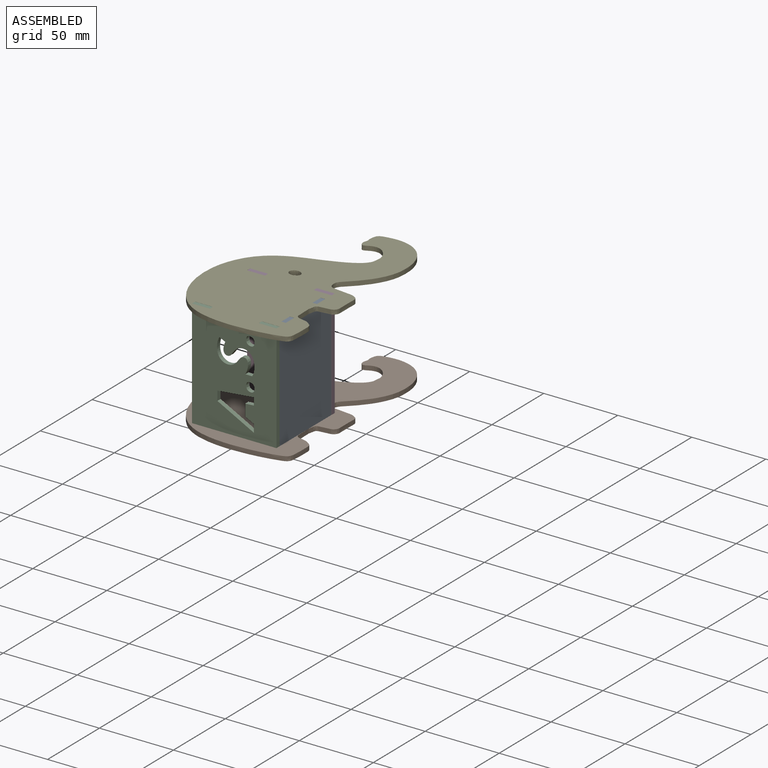
[diagram: assembled view]
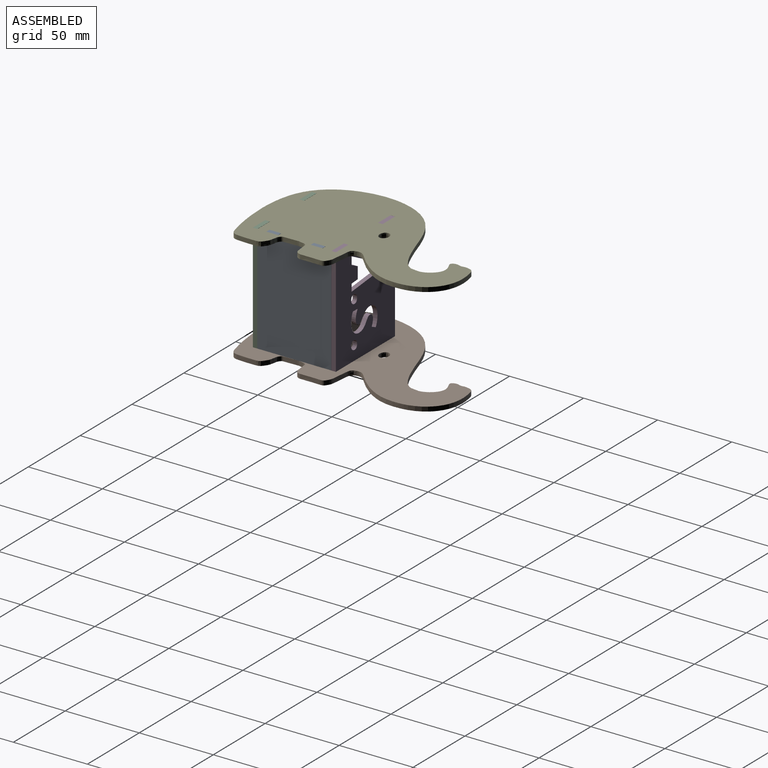
[diagram: assembled view, second angle]
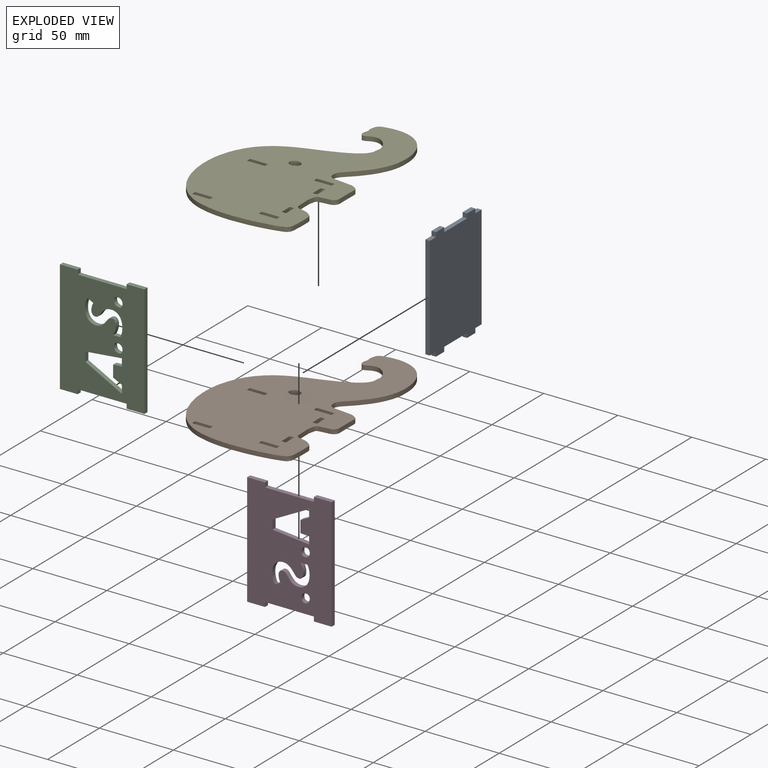
[diagram: exploded view]
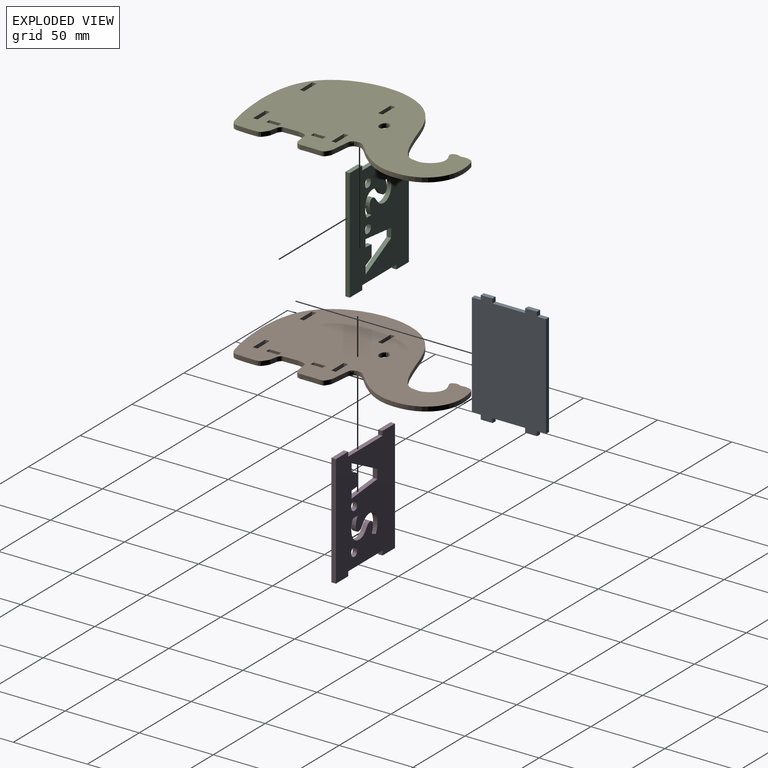
[diagram: exploded view, second angle]
ASSEMBLY  parts=5 mates=3
PART A: 22 faces, bbox 50x3x76 mm
  f0: plane 6x3mm, normal (0,0,-1), area 18mm2, adj f1,f19,f20,f21
  f1: plane 3x3mm, normal (-1,0,0), area 9mm2, adj f0,f2,f20,f21
  f2: plane 8x3mm, normal (0,0,-1), area 24mm2, adj f1,f3,f20,f21
  f3: plane 3x3mm, normal (1,0,0), area 9mm2, adj f2,f4,f20,f21
  f4: plane 22x3mm, normal (0,0,-1), area 66mm2, adj f3,f5,f20,f21
  f5: plane 3x3mm, normal (-1,0,0), area 9mm2, adj f4,f6,f20,f21
  f6: plane 8x3mm, normal (0,0,-1), area 24mm2, adj f5,f7,f20,f21
  f7: plane 3x3mm, normal (1,0,0), area 9mm2, adj f6,f8,f20,f21
  f8: plane 6x3mm, normal (0,0,-1), area 18mm2, adj f7,f9,f20,f21
  f9: plane 70x3mm, normal (1,0,0), area 210mm2, adj f8,f10,f20,f21
  f10: plane 6x3mm, normal (0,0,1), area 18mm2, adj f9,f11,f20,f21
  f11: plane 3x3mm, normal (1,0,0), area 9mm2, adj f10,f12,f20,f21
  f12: plane 8x3mm, normal (0,0,1), area 24mm2, adj f11,f13,f20,f21
  f13: plane 3x3mm, normal (-1,0,0), area 9mm2, adj f12,f14,f20,f21
  f14: plane 22x3mm, normal (0,0,1), area 66mm2, adj f13,f15,f20,f21
  f15: plane 3x3mm, normal (1,0,0), area 9mm2, adj f14,f16,f20,f21
  f16: plane 8x3mm, normal (0,0,1), area 24mm2, adj f15,f17,f20,f21
  f17: plane 3x3mm, normal (-1,0,0), area 9mm2, adj f16,f18,f20,f21
  f18: plane 6x3mm, normal (0,0,1), area 18mm2, adj f17,f19,f20,f21
  f19: plane 70x3mm, normal (-1,0,0), area 210mm2, adj f0,f18,f20,f21
  f20: plane 76x50mm, normal (0,-1,0), area 3596mm2, adj f0,f1,f2,f3,f4,f5,f6,f7
  f21: plane 76x50mm, normal (0,1,0), area 3596mm2, adj f0,f1,f2,f3,f4,f5,f6,f7
PART B: 72 faces, bbox 144.5x3x89.1 mm
  f0: extruded ~4.71x3mm, area 14.1mm2, adj f1,f69,f70,f71
  f1: extruded ~25.5x3mm, area 77mm2, adj f0,f2,f70,f71
  f2: extruded ~7.1x3mm, area 21.9mm2, adj f1,f3,f70,f71
  f3: extruded ~5.12x4.08mm, area 21.4mm2, adj f2,f4,f70,f71
  f4: extruded ~10.91x3mm, area 32.8mm2, adj f3,f5,f70,f71
  f5: extruded ~4.46x3mm, area 13.8mm2, adj f4,f6,f70,f71
  f6: extruded ~4.97x3.14mm, area 17.8mm2, adj f5,f7,f70,f71
  f7: extruded ~3.62x3mm, area 11.1mm2, adj f6,f8,f70,f71
  f8: extruded ~3x2.69mm, area 9mm2, adj f7,f9,f70,f71
  f9: extruded ~3x1.6mm, area 5.6mm2, adj f8,f10,f70,f71
  f10: extruded ~7.8x3mm, area 23.4mm2, adj f9,f11,f70,f71
  f11: extruded ~3.61x3mm, area 10.9mm2, adj f10,f12,f70,f71
  f12: extruded ~4.55x3mm, area 17.6mm2, adj f11,f13,f70,f71
  f13: extruded ~7.14x3mm, area 21.6mm2, adj f12,f14,f70,f71
  f14: extruded ~4.03x3.48mm, area 17.4mm2, adj f13,f15,f70,f71
  f15: extruded ~9.6x3mm, area 28.8mm2, adj f14,f16,f70,f71
  f16: extruded ~4.61x3mm, area 13.8mm2, adj f15,f17,f70,f71
  f17: extruded ~5.75x4.06mm, area 22.6mm2, adj f16,f18,f70,f71
  f18: extruded ~6.79x3mm, area 20.5mm2, adj f17,f19,f70,f71
  f19: extruded ~4.24x3mm, area 12.8mm2, adj f18,f20,f70,f71
  f20: extruded ~4.56x4.5mm, area 21.5mm2, adj f19,f21,f70,f71
  f21: extruded ~5.68x3mm, area 19.9mm2, adj f20,f22,f70,f71
  f22: extruded ~19.28x15.33mm, area 74.4mm2, adj f21,f23,f70,f71
  f23: extruded ~13.29x3.16mm, area 41.3mm2, adj f22,f24,f70,f71
  f24: extruded ~9.97x3mm, area 30.1mm2, adj f23,f25,f70,f71
  f25: extruded ~33.82x19.61mm, area 130.3mm2, adj f24,f26,f70,f71
  f26: extruded ~3.49x3.34mm, area 15.4mm2, adj f25,f27,f70,f71
  f27: extruded ~4.54x3mm, area 13.8mm2, adj f26,f28,f70,f71
  f28: extruded ~3x2.78mm, area 8.5mm2, adj f27,f29,f70,f71
  f29: extruded ~3.47x3mm, area 10.7mm2, adj f28,f30,f70,f71
  f30: extruded ~3.05x3mm, area 11.5mm2, adj f29,f31,f70,f71
  f31: extruded ~3.48x3mm, area 11.5mm2, adj f30,f32,f70,f71
  f32: extruded ~8.47x3mm, area 27.5mm2, adj f31,f33,f70,f71
  f33: extruded ~7.76x4.35mm, area 27.2mm2, adj f32,f34,f70,f71
  f34: extruded ~3x1.04mm, area 3.1mm2, adj f33,f35,f70,f71
  f35: extruded ~5.59x3mm, area 17mm2, adj f34,f36,f70,f71
  f36: extruded ~5.05x4.23mm, area 20mm2, adj f35,f37,f70,f71
  f37: extruded ~11.13x5.88mm, area 37.9mm2, adj f36,f38,f70,f71
  f38: extruded ~17.68x6.22mm, area 56.2mm2, adj f37,f39,f70,f71
  f39: extruded ~15.78x7.27mm, area 52.3mm2, adj f38,f40,f70,f71
  f40: extruded ~33.46x19.46mm, area 120.2mm2, adj f39,f41,f70,f71
  f41: extruded ~22.51x3mm, area 68.2mm2, adj f40,f42,f70,f71
  f42: extruded ~16.22x7.87mm, area 54.4mm2, adj f41,f43,f70,f71
  f43: extruded ~19.4x13.38mm, area 72mm2, adj f42,f69,f70,f71
  f44: plane 3x3mm, normal (0,0,1), area 9mm2, adj f45,f62,f70,f71
  f45: plane 12x3mm, normal (1,0,0), area 36mm2, adj f44,f46,f70,f71
  f46: plane 3x3mm, normal (0,0,-1), area 9mm2, adj f45,f62,f70,f71
  f47: plane 3x3mm, normal (1,0,0), area 9mm2, adj f48,f63,f70,f71
  f48: plane 8x3mm, normal (0,0,-1), area 24mm2, adj f47,f49,f70,f71
  f49: plane 3x3mm, normal (-1,0,0), area 9mm2, adj f48,f63,f70,f71
  f50: plane 3x3mm, normal (1,0,0), area 9mm2, adj f51,f64,f70,f71
  f51: plane 8x3mm, normal (0,0,-1), area 24mm2, adj f50,f52,f70,f71
  f52: plane 3x3mm, normal (-1,0,0), area 9mm2, adj f51,f64,f70,f71
  f53: plane 12x3mm, normal (1,0,0), area 36mm2, adj f54,f65,f70,f71
  f54: plane 3x3mm, normal (0,0,-1), area 9mm2, adj f53,f55,f70,f71
  f55: plane 12x3mm, normal (-1,0,0), area 36mm2, adj f54,f65,f70,f71
  f56: plane 12x3mm, normal (1,0,0), area 36mm2, adj f57,f66,f70,f71
  f57: plane 3x3mm, normal (0,0,-1), area 9mm2, adj f56,f58,f70,f71
  f58: plane 12x3mm, normal (-1,0,0), area 36mm2, adj f57,f66,f70,f71
  f59: plane 3x3mm, normal (0,0,1), area 9mm2, adj f60,f68,f70,f71
  f60: plane 12x3mm, normal (1,0,0), area 36mm2, adj f59,f61,f70,f71
  f61: plane 3x3mm, normal (0,0,-1), area 9mm2, adj f60,f68,f70,f71
  f62: plane 12x3mm, normal (-1,0,0), area 36mm2, adj f44,f46,f70,f71
  f63: plane 8x3mm, normal (0,0,1), area 24mm2, adj f47,f49,f70,f71
  f64: plane 8x3mm, normal (0,0,1), area 24mm2, adj f50,f52,f70,f71
  f65: plane 3x3mm, normal (0,0,1), area 9mm2, adj f53,f55,f70,f71
  f66: plane 3x3mm, normal (0,0,1), area 9mm2, adj f56,f58,f70,f71
  f67: extruded ~7.7x6.17mm, area 65.4mm2, adj f70,f71
  f68: plane 12x3mm, normal (-1,0,0), area 36mm2, adj f59,f61,f70,f71
  f69: extruded ~17.05x3mm, area 52mm2, adj f0,f43,f70,f71
  f70: plane 144.52x89.12mm, normal (0,-1,0), area 7954.4mm2, adj f0,f1,f2,f3,f4,f5,f6,f7
  f71: plane 144.52x89.12mm, normal (0,1,0), area 7954.4mm2, adj f0,f1,f2,f3,f4,f5,f6,f7
PART C: 62 faces, bbox 76x3x57 mm
  f0: plane 76x3mm, normal (0,0,1), area 228mm2, adj f1,f59,f60,f61
  f1: plane 12x3mm, normal (-1,0,0), area 36mm2, adj f0,f2,f60,f61
  f2: plane 3x3mm, normal (0,0,-1), area 9mm2, adj f1,f3,f60,f61
  f3: plane 33.03x3mm, normal (-1,0,0), area 99.1mm2, adj f2,f4,f60,f61
  f4: plane 3x3mm, normal (0,0,1), area 9mm2, adj f3,f5,f60,f61
  f5: plane 12x3mm, normal (-1,0,0), area 36mm2, adj f4,f6,f60,f61
  f6: plane 76x3mm, normal (0,0,-1), area 228mm2, adj f5,f7,f60,f61
  f7: plane 12x3mm, normal (1,0,0), area 36mm2, adj f6,f8,f60,f61
  f8: plane 3x3mm, normal (0,0,1), area 9mm2, adj f7,f9,f60,f61
  f9: plane 33.03x3mm, normal (1,0,0), area 99.1mm2, adj f8,f10,f60,f61
  f10: plane 3x3mm, normal (0,0,-1), area 9mm2, adj f9,f59,f60,f61
  f11: extruded ~3x1.75mm, area 5.8mm2, adj f12,f55,f60,f61
  f12: extruded ~3x2.42mm, area 8mm2, adj f11,f13,f60,f61
  f13: extruded ~3x2.53mm, area 8.3mm2, adj f12,f14,f60,f61
  f14: extruded ~3x1.83mm, area 6mm2, adj f13,f15,f60,f61
  f15: extruded ~3x1.8mm, area 6mm2, adj f14,f16,f60,f61
  f16: extruded ~3x2.37mm, area 7.8mm2, adj f15,f17,f60,f61
  f17: extruded ~3x2.42mm, area 8mm2, adj f16,f55,f60,f61
  f18: extruded ~3.79x3mm, area 11.9mm2, adj f19,f56,f60,f61
  f19: extruded ~5.56x3mm, area 18.9mm2, adj f18,f20,f60,f61
  f20: extruded ~6.74x3mm, area 21.6mm2, adj f19,f21,f60,f61
  f21: extruded ~5.99x3mm, area 18.8mm2, adj f20,f22,f60,f61
  f22: plane 4.61x3mm, normal (1,0,0), area 13.8mm2, adj f21,f23,f60,f61
  f23: extruded ~6.02x3mm, area 19.1mm2, adj f22,f24,f60,f61
  f24: extruded ~3x2.94mm, area 9.2mm2, adj f23,f25,f60,f61
  f25: extruded ~3x1.96mm, area 7mm2, adj f24,f26,f60,f61
  f26: extruded ~3x1.27mm, area 3.9mm2, adj f25,f27,f60,f61
  f27: extruded ~3x1.02mm, area 3.6mm2, adj f26,f28,f60,f61
  f28: extruded ~3x2.08mm, area 8.1mm2, adj f27,f29,f60,f61
  f29: extruded ~3.3x3.27mm, area 14mm2, adj f28,f30,f60,f61
  f30: extruded ~3.51x3mm, area 11mm2, adj f29,f31,f60,f61
  f31: extruded ~3.87x3mm, area 12.2mm2, adj f30,f32,f60,f61
  f32: extruded ~3x2.97mm, area 12.1mm2, adj f31,f33,f60,f61
  f33: extruded ~4.43x3mm, area 13.7mm2, adj f32,f34,f60,f61
  f34: extruded ~6.68x3mm, area 20.9mm2, adj f33,f35,f60,f61
  f35: plane 3.92x3mm, normal (-0.91,0,0.42), area 13mm2, adj f34,f36,f60,f61
  f36: extruded ~4.84x3mm, area 15.1mm2, adj f35,f37,f60,f61
  f37: extruded ~3x2.28mm, area 7.4mm2, adj f36,f38,f60,f61
  f38: extruded ~3x2mm, area 6.8mm2, adj f37,f39,f60,f61
  f39: extruded ~3x1.79mm, area 5.7mm2, adj f38,f40,f60,f61
  f40: extruded ~3x2.49mm, area 9.7mm2, adj f39,f56,f60,f61
  f41: extruded ~3x1.75mm, area 5.8mm2, adj f42,f57,f60,f61
  f42: extruded ~3x2.42mm, area 8mm2, adj f41,f43,f60,f61
  f43: extruded ~3x2.53mm, area 8.3mm2, adj f42,f44,f60,f61
  f44: extruded ~3x1.83mm, area 6mm2, adj f43,f45,f60,f61
  f45: extruded ~3x1.8mm, area 6mm2, adj f44,f46,f60,f61
  f46: extruded ~3x2.37mm, area 7.8mm2, adj f45,f47,f60,f61
  f47: extruded ~3x2.42mm, area 8mm2, adj f46,f57,f60,f61
  f48: plane 5.85x3mm, normal (1,0,0.07), area 17.6mm2, adj f49,f58,f60,f61
  f49: plane 7.95x3mm, normal (0,0,1), area 23.9mm2, adj f48,f50,f60,f61
  f50: plane 5.85x3mm, normal (-0.9,0,0.44), area 19.6mm2, adj f49,f51,f60,f61
  f51: plane 5.38x3mm, normal (0,0,1), area 16.1mm2, adj f50,f52,f60,f61
  f52: plane 24.68x12.87mm, normal (0.89,0,-0.46), area 83.5mm2, adj f51,f53,f60,f61
  f53: plane 6.27x3mm, normal (0,0,-1), area 18.8mm2, adj f52,f54,f60,f61
  f54: plane 24.68x3mm, normal (-1,0,-0.1), area 74.4mm2, adj f53,f58,f60,f61
  f55: extruded ~3x1.92mm, area 6.2mm2, adj f11,f17,f60,f61
  f56: extruded ~3.04x3mm, area 12.8mm2, adj f18,f40,f60,f61
  f57: extruded ~3x1.92mm, area 6.2mm2, adj f41,f47,f60,f61
  f58: plane 4.99x3mm, normal (0,0,1), area 15mm2, adj f48,f54,f60,f61
  f59: plane 12x3mm, normal (1,0,0), area 36mm2, adj f0,f10,f60,f61
  f60: plane 76x57.03mm, normal (0,-1,0), area 3584mm2, adj f0,f1,f2,f3,f4,f5,f6,f7
  f61: plane 76x57.03mm, normal (0,1,0), area 3584mm2, adj f0,f1,f2,f3,f4,f5,f6,f7
PART D: same geometry as C
PART E: same geometry as B
PLACE A rot(axis=(0.71,-0.71,0),180deg) t=(-20.54,-77.99,-7.85)mm fixed
PLACE B rot(axis=(-0.58,0.58,-0.58),120deg) t=(-96.11,4.83,-22.03)mm
PLACE C rot(axis=(0,-1,0),90deg) t=(-69.45,-22.57,-68.28)mm
PLACE D rot(axis=(0.71,0,-0.71),180deg) t=(-69.38,27.55,100.22)mm
PLACE E rot(axis=(-0.58,0.58,-0.58),120deg) t=(-96.11,4.96,50.97)mm fixed
MATE fastened A.f9 <-> C.f61  axis (0,-1,0) through (-17.54,-22.57,15.97)mm
MATE fastened D.f3 <-> E.f71  axis (0,0,1) through (-29.47,30.55,50.97)mm
MATE fastened C.f3 <-> B.f70  axis (0,0,-1) through (-62.58,-25.57,-19.03)mm
